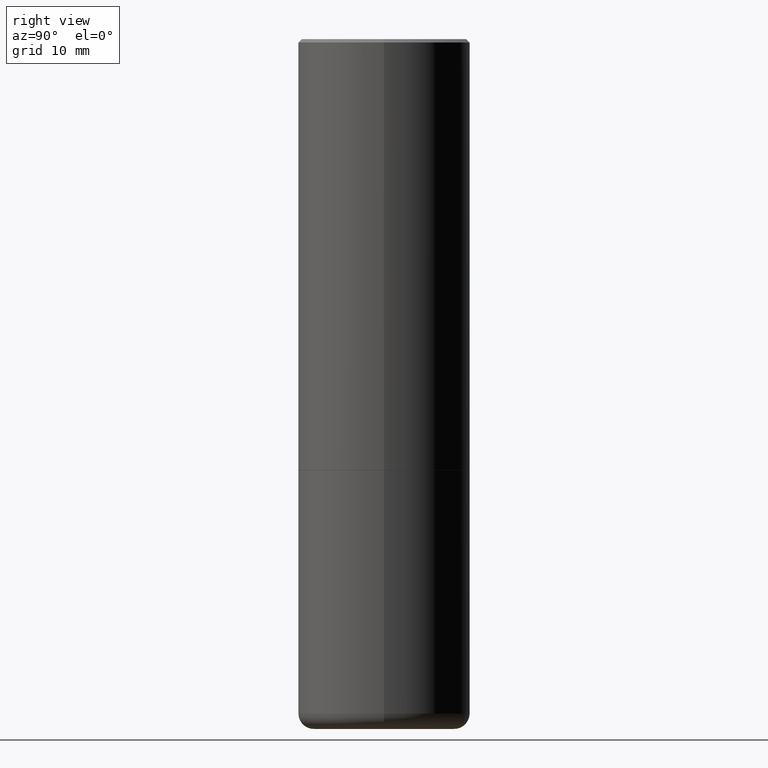
[diagram: clean part render]
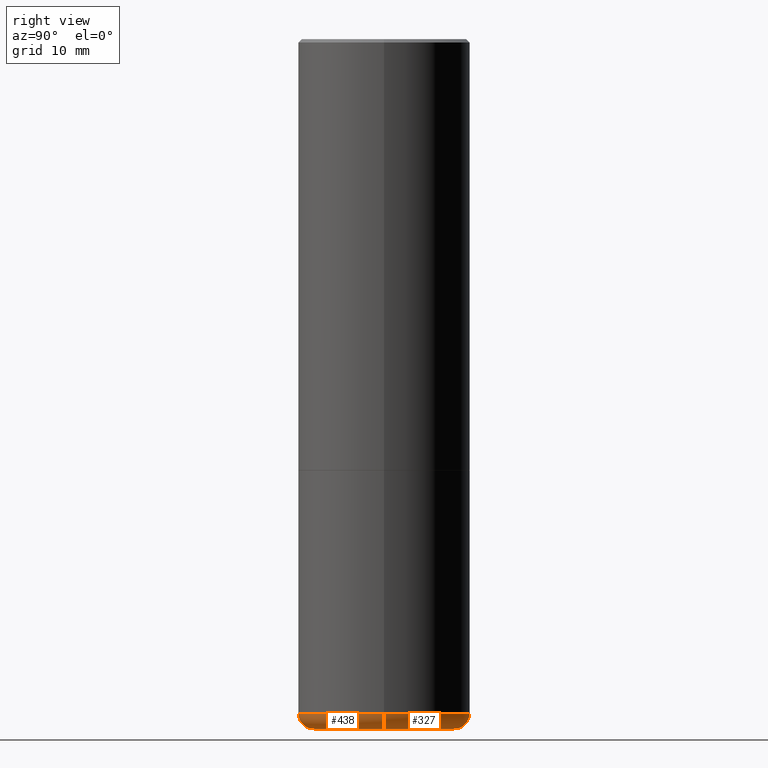
[diagram: same view with one multi-face feature highlighted, each face labeled with its STEP entity id]
A machine part, right view. The highlighted faces form ONE feature: a constant-radius fillet chain: 2 tangent blend faces with common blend radius 2.286 mm. The faces share edges in the B-rep.
Their STEP definitions:
[1] entity #327 (Torus):
#9 = DIRECTION ( 'NONE',  ( 1.000000000000000000, -6.982962677686269077E-15, 0.000000000000000000 ) ) ;
#10 = DIRECTION ( 'NONE',  ( 1.000000000000000000, -6.982962677686266711E-15, 0.000000000000000000 ) ) ;
#12 = EDGE_CURVE ( 'NONE', #96, #136, #190, .T. ) ;
#23 = DIRECTION ( 'NONE',  ( -1.000000000000000000, 7.105427357600990815E-15, 0.000000000000000000 ) ) ;
#41 = CARTESIAN_POINT ( 'NONE',  ( 9.562084660884571289E-29, -1.365212268072139138E-14, -3.910123341872087988 ) ) ;
#46 = AXIS2_PLACEMENT_3D ( 'NONE', #401, #50, #23 ) ;
#50 = DIRECTION ( 'NONE',  ( 7.105427357601001859E-15, 1.000000000000000000, -3.491481338843145583E-15 ) ) ;
#62 = EDGE_CURVE ( 'NONE', #279, #141, #245, .T. ) ;
#66 = CARTESIAN_POINT ( 'NONE',  ( 9.781875224740545266E-29, -1.396592535537258075E-14, -3.999999999999999556 ) ) ;
#71 = CIRCLE ( 'NONE', #300, 0.4052897639381357053 ) ;
#96 = VERTEX_POINT ( 'NONE', #349 ) ;
#116 = CARTESIAN_POINT ( 'NONE',  ( 0.4099999999999999756, -1.651513737857276136E-14, -3.910123341872087988 ) ) ;
#124 = FACE_OUTER_BOUND ( 'NONE', #442, .T. ) ;
#134 = CIRCLE ( 'NONE', #163, 0.5000000000000000000 ) ;
#136 = VERTEX_POINT ( 'NONE', #377 ) ;
#141 = VERTEX_POINT ( 'NONE', #275 ) ;
#144 = DIRECTION ( 'NONE',  ( -2.445468806185136597E-29, 3.491481338843145583E-15, 1.000000000000000000 ) ) ;
#148 = TOROIDAL_SURFACE ( 'NONE', #322, 0.4099999999999999756, 0.08999999999999998279 ) ;
#163 = AXIS2_PLACEMENT_3D ( 'NONE', #41, #316, #10 ) ;
#169 = EDGE_CURVE ( 'NONE', #136, #141, #134, .T. ) ;
#170 = ORIENTED_EDGE ( 'NONE', *, *, #12, .F. ) ;
#175 = CARTESIAN_POINT ( 'NONE',  ( 9.562084660884571289E-29, -1.365212268072139138E-14, -3.910123341872087988 ) ) ;
#190 = CIRCLE ( 'NONE', #355, 0.08999999999999999667 ) ;
#202 = DIRECTION ( 'NONE',  ( 1.000000000000000000, -6.982962677686269077E-15, 0.000000000000000000 ) ) ;
#245 = CIRCLE ( 'NONE', #46, 0.08999999999999999667 ) ;
#253 = EDGE_CURVE ( 'NONE', #96, #279, #71, .T. ) ;
#271 = ORIENTED_EDGE ( 'NONE', *, *, #62, .T. ) ;
#275 = CARTESIAN_POINT ( 'NONE',  ( -0.5000000000000000000, -7.637699335114127230E-15, -3.910123341872087988 ) ) ;
#279 = VERTEX_POINT ( 'NONE', #356 ) ;
#300 = AXIS2_PLACEMENT_3D ( 'NONE', #66, #441, #202 ) ;
#314 = DIRECTION ( 'NONE',  ( -6.982962677686266711E-15, -1.000000000000000000, 3.491481338843145583E-15 ) ) ;
#316 = DIRECTION ( 'NONE',  ( -2.445468806185136597E-29, 3.491481338843145583E-15, 1.000000000000000000 ) ) ;
#322 = AXIS2_PLACEMENT_3D ( 'NONE', #175, #144, #422 ) ;
#327 = ADVANCED_FACE ( 'NONE', ( #124 ), #148, .T. ) ;
#349 = CARTESIAN_POINT ( 'NONE',  ( 0.4052897639381357053, -1.679604865060086105E-14, -3.999999999999999556 ) ) ;
#355 = AXIS2_PLACEMENT_3D ( 'NONE', #116, #314, #9 ) ;
#356 = CARTESIAN_POINT ( 'NONE',  ( -0.4052897639381357053, -1.059278869042589352E-14, -3.999999999999999556 ) ) ;
#357 = ORIENTED_EDGE ( 'NONE', *, *, #169, .F. ) ;
#361 = ORIENTED_EDGE ( 'NONE', *, *, #253, .T. ) ;
#377 = CARTESIAN_POINT ( 'NONE',  ( 0.5000000000000000000, -1.714360401956452473E-14, -3.910123341872087988 ) ) ;
#401 = CARTESIAN_POINT ( 'NONE',  ( -0.4099999999999999756, -1.073889746410498118E-14, -3.910123341872087988 ) ) ;
#422 = DIRECTION ( 'NONE',  ( 1.000000000000000000, -6.982962677686266711E-15, 4.883557194083113462E-29 ) ) ;
#441 = DIRECTION ( 'NONE',  ( -2.445468806185136597E-29, 3.491481338843145583E-15, 1.000000000000000000 ) ) ;
#442 = EDGE_LOOP ( 'NONE', ( #361, #271, #357, #170 ) ) ;
[2] entity #438 (Torus):
#8 = CARTESIAN_POINT ( 'NONE',  ( 9.562084660884571289E-29, -1.365212268072139138E-14, -3.910123341872087988 ) ) ;
#9 = DIRECTION ( 'NONE',  ( 1.000000000000000000, -6.982962677686269077E-15, 0.000000000000000000 ) ) ;
#12 = EDGE_CURVE ( 'NONE', #96, #136, #190, .T. ) ;
#23 = DIRECTION ( 'NONE',  ( -1.000000000000000000, 7.105427357600990815E-15, 0.000000000000000000 ) ) ;
#24 = ORIENTED_EDGE ( 'NONE', *, *, #12, .T. ) ;
#25 = AXIS2_PLACEMENT_3D ( 'NONE', #374, #264, #407 ) ;
#46 = AXIS2_PLACEMENT_3D ( 'NONE', #401, #50, #23 ) ;
#50 = DIRECTION ( 'NONE',  ( 7.105427357601001859E-15, 1.000000000000000000, -3.491481338843145583E-15 ) ) ;
#57 = DIRECTION ( 'NONE',  ( -2.445468806185136597E-29, 3.491481338843145583E-15, 1.000000000000000000 ) ) ;
#62 = EDGE_CURVE ( 'NONE', #279, #141, #245, .T. ) ;
#74 = DIRECTION ( 'NONE',  ( 1.000000000000000000, -6.982962677686266711E-15, 4.883557194083113462E-29 ) ) ;
#96 = VERTEX_POINT ( 'NONE', #349 ) ;
#116 = CARTESIAN_POINT ( 'NONE',  ( 0.4099999999999999756, -1.651513737857276136E-14, -3.910123341872087988 ) ) ;
#120 = CIRCLE ( 'NONE', #180, 0.4052897639381357053 ) ;
#128 = DIRECTION ( 'NONE',  ( 1.000000000000000000, -6.982962677686269077E-15, 0.000000000000000000 ) ) ;
#136 = VERTEX_POINT ( 'NONE', #377 ) ;
#141 = VERTEX_POINT ( 'NONE', #275 ) ;
#161 = CARTESIAN_POINT ( 'NONE',  ( 9.781875224740545266E-29, -1.396592535537258075E-14, -3.999999999999999556 ) ) ;
#176 = EDGE_LOOP ( 'NONE', ( #204, #351, #24, #348 ) ) ;
#180 = AXIS2_PLACEMENT_3D ( 'NONE', #161, #57, #128 ) ;
#190 = CIRCLE ( 'NONE', #355, 0.08999999999999999667 ) ;
#204 = ORIENTED_EDGE ( 'NONE', *, *, #62, .F. ) ;
#245 = CIRCLE ( 'NONE', #46, 0.08999999999999999667 ) ;
#246 = CIRCLE ( 'NONE', #25, 0.5000000000000000000 ) ;
#264 = DIRECTION ( 'NONE',  ( -2.445468806185136597E-29, 3.491481338843145583E-15, 1.000000000000000000 ) ) ;
#272 = FACE_OUTER_BOUND ( 'NONE', #176, .T. ) ;
#275 = CARTESIAN_POINT ( 'NONE',  ( -0.5000000000000000000, -7.637699335114127230E-15, -3.910123341872087988 ) ) ;
#278 = AXIS2_PLACEMENT_3D ( 'NONE', #8, #284, #74 ) ;
#279 = VERTEX_POINT ( 'NONE', #356 ) ;
#284 = DIRECTION ( 'NONE',  ( -2.445468806185136597E-29, 3.491481338843145583E-15, 1.000000000000000000 ) ) ;
#314 = DIRECTION ( 'NONE',  ( -6.982962677686266711E-15, -1.000000000000000000, 3.491481338843145583E-15 ) ) ;
#348 = ORIENTED_EDGE ( 'NONE', *, *, #413, .F. ) ;
#349 = CARTESIAN_POINT ( 'NONE',  ( 0.4052897639381357053, -1.679604865060086105E-14, -3.999999999999999556 ) ) ;
#351 = ORIENTED_EDGE ( 'NONE', *, *, #393, .T. ) ;
#355 = AXIS2_PLACEMENT_3D ( 'NONE', #116, #314, #9 ) ;
#356 = CARTESIAN_POINT ( 'NONE',  ( -0.4052897639381357053, -1.059278869042589352E-14, -3.999999999999999556 ) ) ;
#374 = CARTESIAN_POINT ( 'NONE',  ( 9.562084660884571289E-29, -1.365212268072139138E-14, -3.910123341872087988 ) ) ;
#377 = CARTESIAN_POINT ( 'NONE',  ( 0.5000000000000000000, -1.714360401956452473E-14, -3.910123341872087988 ) ) ;
#393 = EDGE_CURVE ( 'NONE', #279, #96, #120, .T. ) ;
#401 = CARTESIAN_POINT ( 'NONE',  ( -0.4099999999999999756, -1.073889746410498118E-14, -3.910123341872087988 ) ) ;
#407 = DIRECTION ( 'NONE',  ( 1.000000000000000000, -6.982962677686266711E-15, 0.000000000000000000 ) ) ;
#413 = EDGE_CURVE ( 'NONE', #141, #136, #246, .T. ) ;
#433 = TOROIDAL_SURFACE ( 'NONE', #278, 0.4099999999999999756, 0.08999999999999998279 ) ;
#438 = ADVANCED_FACE ( 'NONE', ( #272 ), #433, .T. ) ;